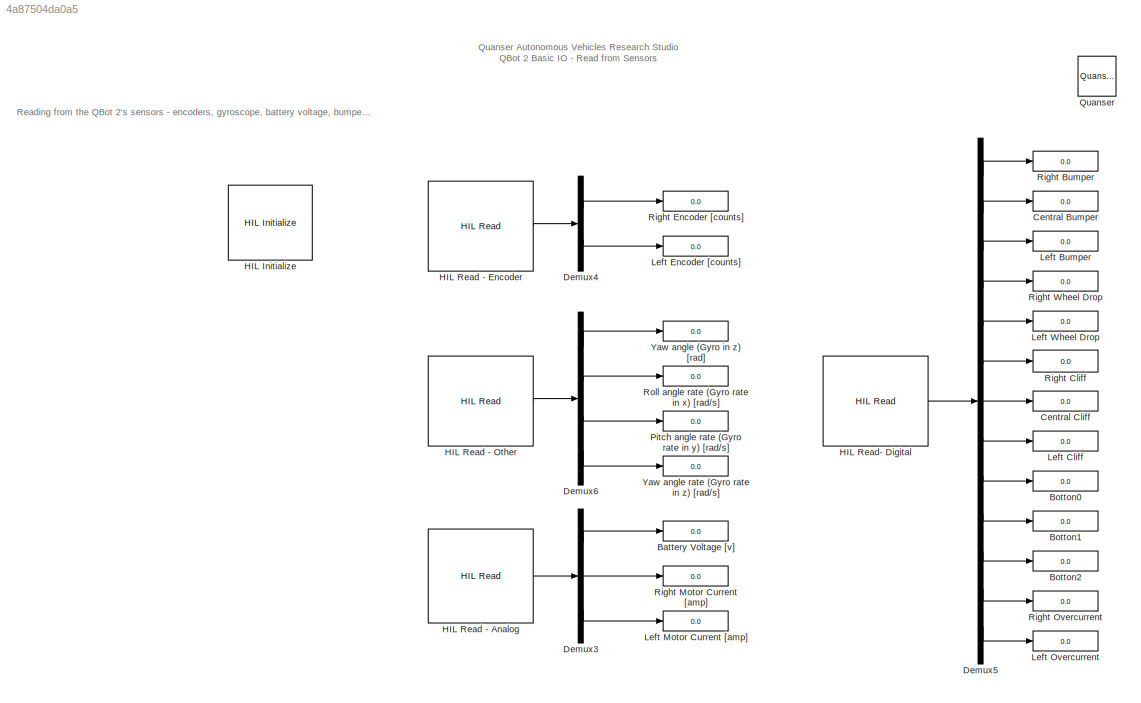
MODEL slx_4a87504da0a5
KIND model
CONFIG AbsTol = auto
CONFIG EnableMultiTasking = on
CONFIG FixedStep = 0.01
CONFIG MaxStep = auto
CONFIG MinStep = auto
CONFIG RelTol = 1e-3
CONFIG SampleTimeConstraint = Unconstrained
CONFIG Solver = FixedStepDiscrete
CONFIG SolverName = FixedStepDiscrete
CONFIG StartTime = 0.0
CONFIG StopTime = inf
BLOCK [Display] Battery Voltage [v]
  Decimation = 20
  Ports = [1]
BLOCK [Display] Botton0
  Decimation = 20
  Ports = [1]
BLOCK [Display] Botton1
  Decimation = 20
  Ports = [1]
BLOCK [Display] Botton2
  Decimation = 20
  Ports = [1]
BLOCK [Display] Central Bumper
  Decimation = 20
  Ports = [1]
BLOCK [Display] Central Cliff
  Decimation = 20
  Ports = [1]
BLOCK [Demux] Demux3
  DisplayOption = bar
  Outputs = 3
  Ports = [1, 3]
BLOCK [Demux] Demux4
  DisplayOption = bar
  Outputs = 2
  Ports = [1, 2]
BLOCK [Demux] Demux5
  DisplayOption = bar
  Outputs = 13
  Ports = [1, 13]
BLOCK [Demux] Demux6
  DisplayOption = bar
  Ports = [1, 4]
BLOCK [Reference] HIL Initialize  REF=quarc_library/Data Acquisition/Generic/Configuration/HIL Initialize
  AttributesFormatString = %<object_name> (%<board_type>-%<board_number>)
  Ports = []
  Priority = -99
  SourceBlock = quarc_library/Data Acquisition/Generic/Configuration/HIL Initialize
  SourceProductName = QUARC Targets
  SourceType = HIL Initialize
  UserDataPersistent = on
BLOCK [Reference] HIL Read - Analog  REF=quarc_library/Data Acquisition/Generic/Immediate I//O/HIL Read
  AttributesFormatString = (%<object_name>)
  Ports = [0, 1]
  SourceBlock = quarc_library/Data Acquisition/Generic/Immediate I//O/HIL Read
  SourceProductName = QUARC Targets
  SourceType = HIL Read
  UserDataPersistent = on
BLOCK [Reference] HIL Read - Encoder  REF=quarc_library/Data Acquisition/Generic/Immediate I//O/HIL Read
  AttributesFormatString = (%<object_name>)
  Ports = [0, 1]
  SourceBlock = quarc_library/Data Acquisition/Generic/Immediate I//O/HIL Read
  SourceProductName = QUARC Targets
  SourceType = HIL Read
  UserDataPersistent = on
BLOCK [Reference] HIL Read - Other  REF=quarc_library/Data Acquisition/Generic/Immediate I//O/HIL Read
  AttributesFormatString = (%<object_name>)
  Ports = [0, 1]
  SourceBlock = quarc_library/Data Acquisition/Generic/Immediate I//O/HIL Read
  SourceProductName = QUARC Targets
  SourceType = HIL Read
  UserDataPersistent = on
BLOCK [Reference] HIL Read- Digital  REF=quarc_library/Data Acquisition/Generic/Immediate I//O/HIL Read
  AttributesFormatString = (%<object_name>)
  Ports = [0, 1]
  SourceBlock = quarc_library/Data Acquisition/Generic/Immediate I//O/HIL Read
  SourceProductName = QUARC Targets
  SourceType = HIL Read
  UserDataPersistent = on
BLOCK [Display] Left Bumper
  Decimation = 20
  Ports = [1]
BLOCK [Display] Left Cliff
  Decimation = 20
  Ports = [1]
BLOCK [Display] Left Encoder [counts]
  Decimation = 20
  Ports = [1]
BLOCK [Display] Left Motor Current [amp]
  Decimation = 20
  Ports = [1]
BLOCK [Display] Left Overcurrent
  Decimation = 20
  Ports = [1]
BLOCK [Display] Left Wheel Drop
  Decimation = 20
  Ports = [1]
BLOCK [Display] Pitch angle rate (Gyro rate in y) [rad//s]
  Decimation = 20
  Ports = [1]
BLOCK [Reference] Quanser  REF=quarc_library/Logos/Quanser
  Ports = []
  SourceBlock = quarc_library/Logos/Quanser
  SourceProductName = QUARC Targets
  SourceType = Powered by Quanser
BLOCK [Display] Right Bumper
  Decimation = 20
  Ports = [1]
BLOCK [Display] Right Cliff
  Decimation = 20
  Ports = [1]
BLOCK [Display] Right Encoder [counts]
  Decimation = 20
  Ports = [1]
BLOCK [Display] Right Motor Current [amp]
  Decimation = 20
  Ports = [1]
BLOCK [Display] Right Overcurrent
  Decimation = 20
  Ports = [1]
BLOCK [Display] Right Wheel Drop
  Decimation = 20
  Ports = [1]
BLOCK [Display] Roll angle rate (Gyro rate in x) [rad//s]
  Decimation = 20
  Ports = [1]
BLOCK [Display] Yaw angle (Gyro in z) [rad]
  Decimation = 20
  Ports = [1]
BLOCK [Display] Yaw angle rate (Gyro rate in z) [rad//s]
  Decimation = 20
  Ports = [1]
ANNOTATION (root): Quanser Autonomous Vehicles Research Studio QBot 2 Basic IO - Read from Sensors
ANNOTATION (root): Reading from the QBot 2's sensors - encoders, gyroscope, battery voltage, bumpers, buttons, etc.
LINE Demux3:1 -> Battery Voltage [v]:1
LINE Demux3:2 -> Right Motor Current [amp]:1
LINE Demux3:3 -> Left Motor Current [amp]:1
LINE Demux4:1 -> Right Encoder [counts]:1
LINE Demux4:2 -> Left Encoder [counts]:1
LINE Demux5:1 -> Right Bumper:1
LINE Demux5:10 -> Botton1:1
LINE Demux5:11 -> Botton2:1
LINE Demux5:12 -> Right Overcurrent:1
LINE Demux5:13 -> Left Overcurrent:1
LINE Demux5:2 -> Central Bumper:1
LINE Demux5:3 -> Left Bumper:1
LINE Demux5:4 -> Right Wheel Drop:1
LINE Demux5:5 -> Left Wheel Drop:1
LINE Demux5:6 -> Right Cliff:1
LINE Demux5:7 -> Central Cliff:1
LINE Demux5:8 -> Left Cliff:1
LINE Demux5:9 -> Botton0:1
LINE Demux6:1 -> Yaw angle (Gyro in z) [rad]:1
LINE Demux6:2 -> Roll angle rate (Gyro rate in x) [rad//s]:1
LINE Demux6:3 -> Pitch angle rate (Gyro rate in y) [rad//s]:1
LINE Demux6:4 -> Yaw angle rate (Gyro rate in z) [rad//s]:1
LINE HIL Read - Analog:1 -> Demux3:1
LINE HIL Read - Encoder:1 -> Demux4:1
LINE HIL Read - Other:1 -> Demux6:1
LINE HIL Read- Digital:1 -> Demux5:1
